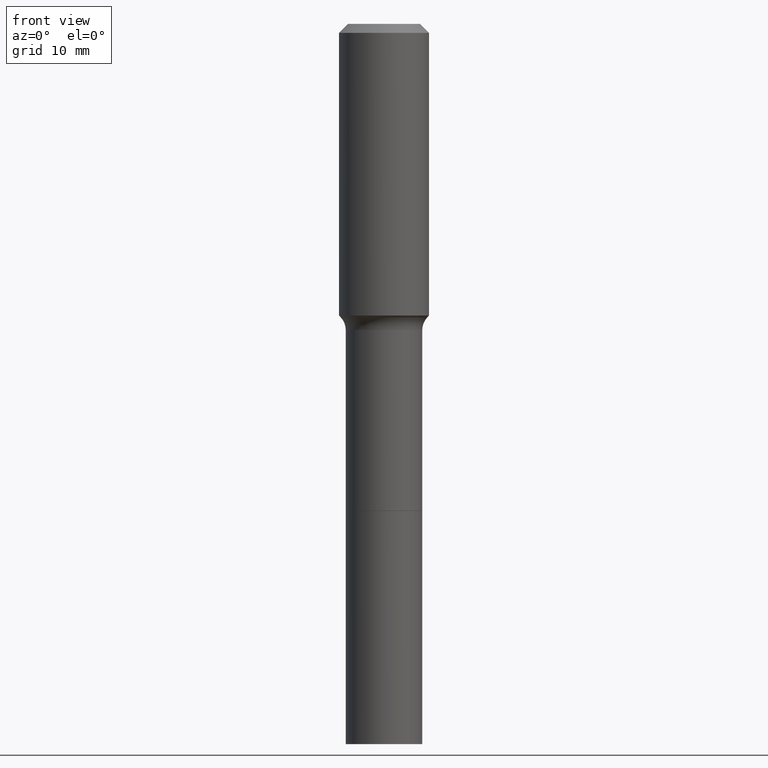
[diagram: clean part render]
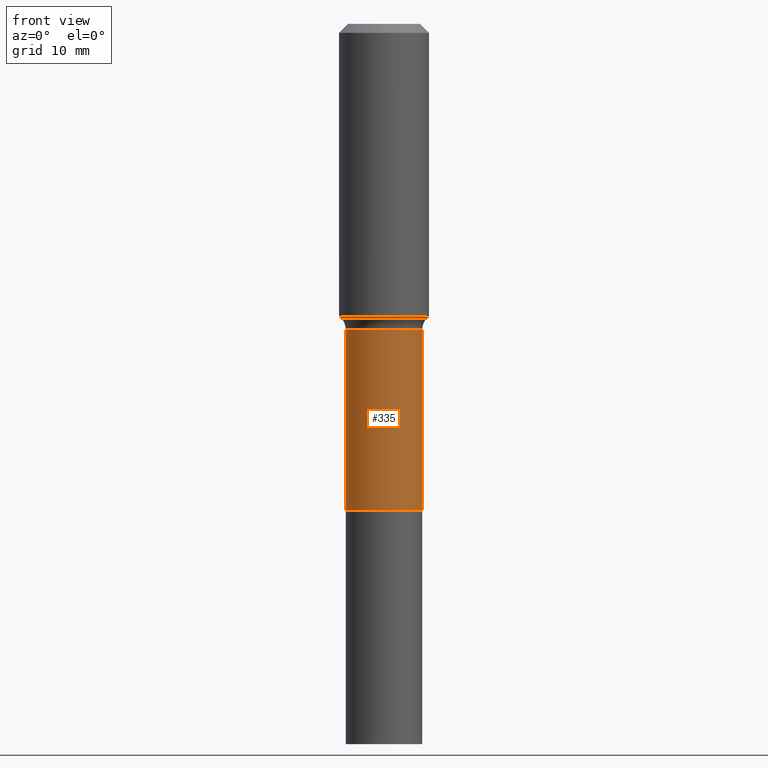
[diagram: same view with one face highlighted and labeled with its STEP entity id]
A machine part, front view. The second image highlights one B-rep face of the part: STEP entity #335.
In plain terms, the highlighted cylindrical surface (partial cylindrical patch) has radius 4.2494 mm, axis along (-0, 0, 1).
Its self-contained STEP definition (entity closure, byte-faithful):
#18 = FACE_OUTER_BOUND ( 'NONE', #417, .T. ) ;
#27 = DIRECTION ( 'NONE',  ( -2.445468806185136877E-29, 3.491481338843145188E-15, 1.000000000000000000 ) ) ;
#31 = DIRECTION ( 'NONE',  ( 1.000000000000000000, -6.982962677686267499E-15, 0.000000000000000000 ) ) ;
#38 = CARTESIAN_POINT ( 'NONE',  ( -0.1672999999999999488, 1.188737996926647247E-15, -8.229378405996454748E-30 ) ) ;
#44 = AXIS2_PLACEMENT_3D ( 'NONE', #213, #372, #183 ) ;
#61 = ORIENTED_EDGE ( 'NONE', *, *, #258, .T. ) ;
#66 = AXIS2_PLACEMENT_3D ( 'NONE', #386, #111, #31 ) ;
#85 = VECTOR ( 'NONE', #516, 39.37007874015748143 ) ;
#89 = VECTOR ( 'NONE', #27, 39.37007874015748143 ) ;
#111 = DIRECTION ( 'NONE',  ( -2.445468806185136597E-29, 3.491481338843145583E-15, 1.000000000000000000 ) ) ;
#135 = VERTEX_POINT ( 'NONE', #319 ) ;
#136 = DIRECTION ( 'NONE',  ( 1.000000000000000000, -6.982962677686269866E-15, 0.000000000000000000 ) ) ;
#153 = LINE ( 'NONE', #276, #89 ) ;
#183 = DIRECTION ( 'NONE',  ( 1.000000000000000000, -6.982962677686267499E-15, 4.876176775795936353E-29 ) ) ;
#195 = VERTEX_POINT ( 'NONE', #333 ) ;
#209 = LINE ( 'NONE', #38, #85 ) ;
#213 = CARTESIAN_POINT ( 'NONE',  ( 0.000000000000000000, 0.000000000000000000, 0.000000000000000000 ) ) ;
#222 = CARTESIAN_POINT ( 'NONE',  ( 0.1673000000000000043, -8.601962574507855106E-15, -2.129100000000000215 ) ) ;
#229 = VERTEX_POINT ( 'NONE', #222 ) ;
#258 = EDGE_CURVE ( 'NONE', #488, #229, #370, .T. ) ;
#276 = CARTESIAN_POINT ( 'NONE',  ( 0.1672999999999999488, -1.168249655976912195E-15, 8.157843745906598810E-30 ) ) ;
#292 = ORIENTED_EDGE ( 'NONE', *, *, #358, .F. ) ;
#319 = CARTESIAN_POINT ( 'NONE',  ( -0.1672999999999999210, -4.864966922426541281E-15, -1.338600000000000234 ) ) ;
#333 = CARTESIAN_POINT ( 'NONE',  ( 0.1672999999999999210, -5.841946576152347523E-15, -1.338600000000000234 ) ) ;
#335 = ADVANCED_FACE ( 'NONE', ( #18 ), #409, .T. ) ;
#336 = DIRECTION ( 'NONE',  ( -2.445468806185136597E-29, 3.491481338843145583E-15, 1.000000000000000000 ) ) ;
#342 = CARTESIAN_POINT ( 'NONE',  ( 5.206647635248775343E-29, -7.433712918530942319E-15, -2.129100000000000215 ) ) ;
#354 = AXIS2_PLACEMENT_3D ( 'NONE', #342, #336, #136 ) ;
#358 = EDGE_CURVE ( 'NONE', #135, #195, #389, .T. ) ;
#359 = CARTESIAN_POINT ( 'NONE',  ( -0.1673000000000000043, -4.864966922426540492E-15, -2.129100000000000215 ) ) ;
#363 = EDGE_CURVE ( 'NONE', #229, #195, #153, .T. ) ;
#370 = CIRCLE ( 'NONE', #354, 0.1673000000000000043 ) ;
#372 = DIRECTION ( 'NONE',  ( -2.445468806185136597E-29, 3.491481338843145583E-15, 1.000000000000000000 ) ) ;
#374 = ORIENTED_EDGE ( 'NONE', *, *, #478, .F. ) ;
#385 = ORIENTED_EDGE ( 'NONE', *, *, #363, .T. ) ;
#386 = CARTESIAN_POINT ( 'NONE',  ( 3.273504543959424474E-29, -4.673696920175435525E-15, -1.338600000000000234 ) ) ;
#389 = CIRCLE ( 'NONE', #66, 0.1672999999999999210 ) ;
#409 = CYLINDRICAL_SURFACE ( 'NONE', #44, 0.1672999999999999488 ) ;
#417 = EDGE_LOOP ( 'NONE', ( #374, #61, #385, #292 ) ) ;
#478 = EDGE_CURVE ( 'NONE', #488, #135, #209, .T. ) ;
#488 = VERTEX_POINT ( 'NONE', #359 ) ;
#516 = DIRECTION ( 'NONE',  ( -2.445468806185136877E-29, 3.491481338843145188E-15, 1.000000000000000000 ) ) ;